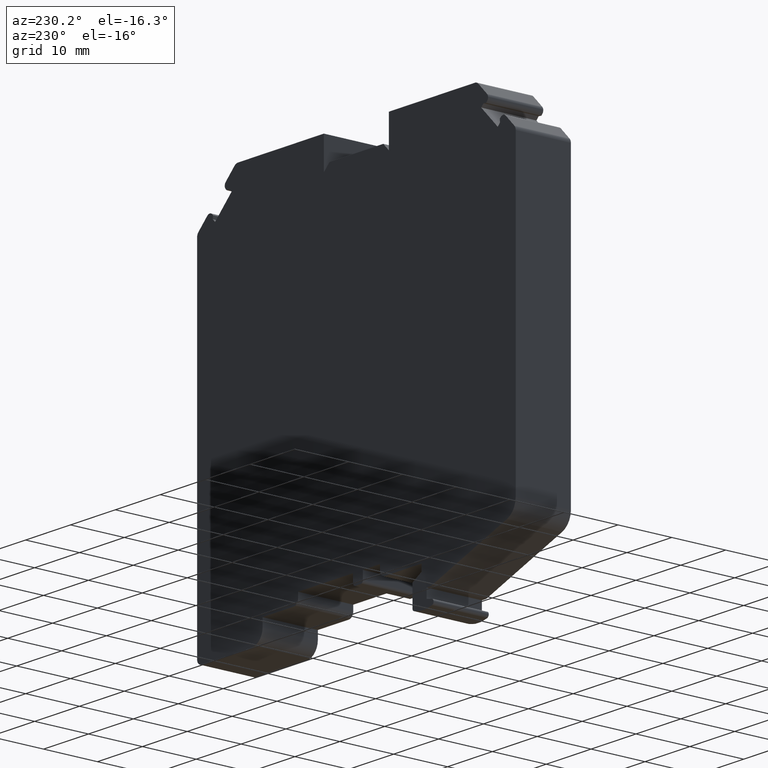
[diagram: clean part render]
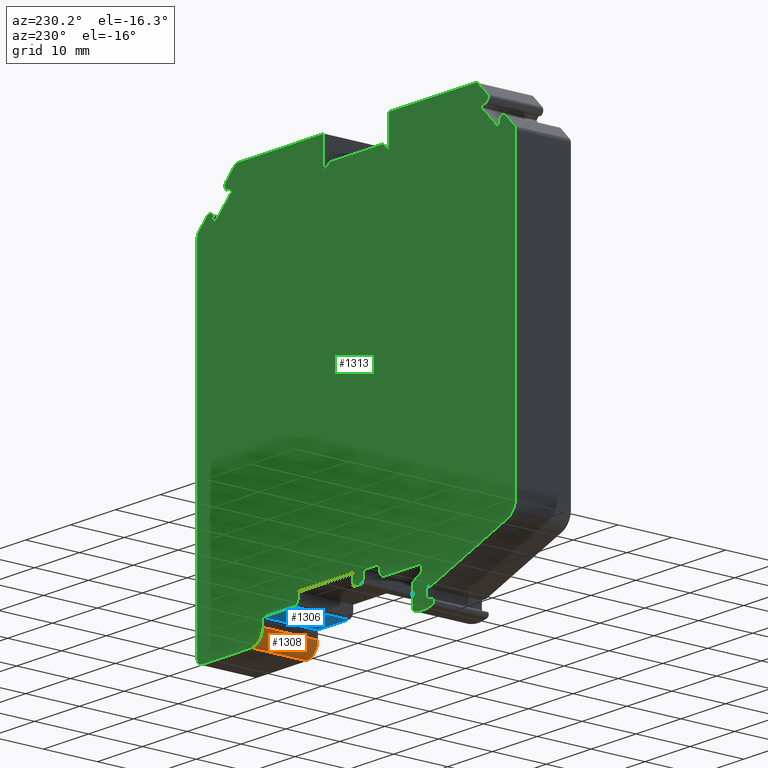
[diagram: same view with three faces highlighted in distinct colors, each labeled with its STEP entity id]
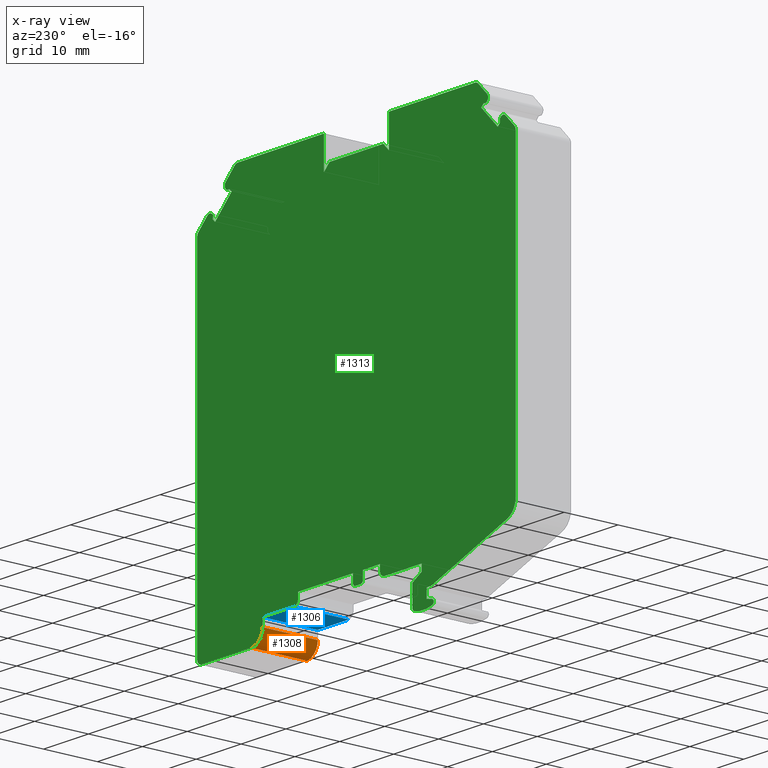
[diagram: x-ray of the same camera — body ghosted, the three highlighted faces saturated]
A machine part, auxiliary view with three faces highlighted in distinct colors.
The next image is the same camera in x-ray (body ghosted, the three faces saturated) — at least one of them is partly hidden behind the body in this view.
Their STEP definitions:

[orange] entity #1308 — the highlighted cylindrical surface (edge-blend (fillet) strip) has radius 2.4999 mm, axis along (0, -1, 0).
#50=CIRCLE('',#1417,2.499880856);
#51=CIRCLE('',#1418,2.499880856);
#71=CYLINDRICAL_SURFACE('',#1416,2.499880856);
#306=ORIENTED_EDGE('',*,*,#627,.F.);
#307=ORIENTED_EDGE('',*,*,#626,.F.);
#308=ORIENTED_EDGE('',*,*,#628,.T.);
#309=ORIENTED_EDGE('',*,*,#629,.T.);
#626=EDGE_CURVE('',#758,#757,#911,.T.);
#627=EDGE_CURVE('',#757,#759,#50,.T.);
#628=EDGE_CURVE('',#758,#760,#51,.T.);
#629=EDGE_CURVE('',#760,#759,#912,.T.);
#757=VERTEX_POINT('',#2134);
#758=VERTEX_POINT('',#2136);
#759=VERTEX_POINT('',#2140);
#760=VERTEX_POINT('',#2142);
#911=LINE('',#2137,#1064);
#912=LINE('',#2143,#1065);
#1064=VECTOR('',#1751,1000.);
#1065=VECTOR('',#1758,1000.);
#1131=EDGE_LOOP('',(#306,#307,#308,#309));
#1196=FACE_BOUND('',#1131,.T.);
#1308=ADVANCED_FACE('',(#1196),#71,.T.);
#1416=AXIS2_PLACEMENT_3D('',#2138,#1752,#1753);
#1417=AXIS2_PLACEMENT_3D('',#2139,#1754,#1755);
#1418=AXIS2_PLACEMENT_3D('',#2141,#1756,#1757);
#1751=DIRECTION('',(0.,-1.,0.));
#1752=DIRECTION('',(0.,-1.,0.));
#1753=DIRECTION('',(0.,0.,-1.));
#1754=DIRECTION('',(0.,-1.,0.));
#1755=DIRECTION('',(1.,0.,0.));
#1756=DIRECTION('',(0.,-1.,0.));
#1757=DIRECTION('',(1.,0.,0.));
#1758=DIRECTION('',(0.,-1.,0.));
#2134=CARTESIAN_POINT('',(20.8990039561598,0.,-32.3997271602398));
#2136=CARTESIAN_POINT('',(20.8990039561598,10.25,-32.3997271602398));
#2137=CARTESIAN_POINT('',(20.8990039561598,10.25,-32.3997271602398));
#2138=CARTESIAN_POINT('',(23.3988848121598,10.25,-32.3997271602398));
#2139=CARTESIAN_POINT('',(23.3988848121598,0.,-32.3997271602398));
#2140=CARTESIAN_POINT('',(23.3988848121598,0.,-34.8996080162398));
#2141=CARTESIAN_POINT('',(23.3988848121598,10.25,-32.3997271602398));
#2142=CARTESIAN_POINT('',(23.3988848121598,10.25,-34.8996080162398));
#2143=CARTESIAN_POINT('',(23.3988848121598,10.25,-34.8996080162398));

[blue] entity #1306 — the highlighted planar face has unit normal (0, 0, -1).
#298=ORIENTED_EDGE('',*,*,#621,.F.);
#299=ORIENTED_EDGE('',*,*,#620,.F.);
#300=ORIENTED_EDGE('',*,*,#622,.T.);
#301=ORIENTED_EDGE('',*,*,#623,.T.);
#620=EDGE_CURVE('',#754,#753,#905,.T.);
#621=EDGE_CURVE('',#753,#755,#906,.T.);
#622=EDGE_CURVE('',#754,#756,#907,.T.);
#623=EDGE_CURVE('',#756,#755,#908,.T.);
#753=VERTEX_POINT('',#2122);
#754=VERTEX_POINT('',#2124);
#755=VERTEX_POINT('',#2128);
#756=VERTEX_POINT('',#2130);
#905=LINE('',#2125,#1058);
#906=LINE('',#2127,#1059);
#907=LINE('',#2129,#1060);
#908=LINE('',#2131,#1061);
#1058=VECTOR('',#1741,1000.);
#1059=VECTOR('',#1744,1000.);
#1060=VECTOR('',#1745,1000.);
#1061=VECTOR('',#1746,1000.);
#1129=EDGE_LOOP('',(#298,#299,#300,#301));
#1194=FACE_BOUND('',#1129,.T.);
#1244=PLANE('',#1414);
#1306=ADVANCED_FACE('',(#1194),#1244,.T.);
#1414=AXIS2_PLACEMENT_3D('',#2126,#1742,#1743);
#1741=DIRECTION('',(0.,-1.,0.));
#1742=DIRECTION('',(0.,0.,-1.));
#1743=DIRECTION('',(-1.,0.,0.));
#1744=DIRECTION('',(1.,0.,0.));
#1745=DIRECTION('',(1.,0.,0.));
#1746=DIRECTION('',(0.,-1.,0.));
#2122=CARTESIAN_POINT('',(13.999332793599,0.,-30.8997986466398));
#2124=CARTESIAN_POINT('',(13.999332793599,10.25,-30.8997986466398));
#2125=CARTESIAN_POINT('',(13.999332793599,10.25,-30.8997986466398));
#2126=CARTESIAN_POINT('',(13.999332793599,10.25,-30.8997986466402));
#2127=CARTESIAN_POINT('',(13.999332793599,0.,-30.8997986466402));
#2128=CARTESIAN_POINT('',(20.8990039561598,0.,-30.8997986466402));
#2129=CARTESIAN_POINT('',(13.999332793599,10.25,-30.8997986466402));
#2130=CARTESIAN_POINT('',(20.8990039561598,10.25,-30.8997986466402));
#2131=CARTESIAN_POINT('',(20.8990039561598,10.25,-30.8997986466402));

[green] entity #1313 — the highlighted planar face has unit normal (0, -1, 0).
#21=CIRCLE('',#1331,0.75);
#23=CIRCLE('',#1341,0.75);
#25=CIRCLE('',#1345,1.);
#27=CIRCLE('',#1355,1.);
#29=CIRCLE('',#1359,0.75);
#31=CIRCLE('',#1369,0.75);
#33=CIRCLE('',#1373,1.);
#35=CIRCLE('',#1377,3.);
#37=CIRCLE('',#1384,0.499976171200046);
#39=CIRCLE('',#1387,6.81634180069329);
#41=CIRCLE('',#1390,0.499976171200046);
#43=CIRCLE('',#1397,0.999952342399979);
#45=CIRCLE('',#1403,0.499976171200046);
#47=CIRCLE('',#1407,0.499976171200046);
#49=CIRCLE('',#1413,0.999952342399979);
#51=CIRCLE('',#1418,2.499880856);
#53=CIRCLE('',#1422,1.);
#55=CIRCLE('',#1426,1.);
#326=ORIENTED_EDGE('',*,*,#454,.F.);
#327=ORIENTED_EDGE('',*,*,#640,.F.);
#328=ORIENTED_EDGE('',*,*,#637,.F.);
#329=ORIENTED_EDGE('',*,*,#634,.F.);
#330=ORIENTED_EDGE('',*,*,#631,.F.);
#331=ORIENTED_EDGE('',*,*,#628,.F.);
#332=ORIENTED_EDGE('',*,*,#625,.F.);
#333=ORIENTED_EDGE('',*,*,#622,.F.);
#334=ORIENTED_EDGE('',*,*,#619,.F.);
#335=ORIENTED_EDGE('',*,*,#616,.F.);
#336=ORIENTED_EDGE('',*,*,#613,.F.);
#337=ORIENTED_EDGE('',*,*,#610,.F.);
#338=ORIENTED_EDGE('',*,*,#607,.F.);
#339=ORIENTED_EDGE('',*,*,#604,.F.);
#340=ORIENTED_EDGE('',*,*,#601,.F.);
#341=ORIENTED_EDGE('',*,*,#598,.F.);
#342=ORIENTED_EDGE('',*,*,#595,.F.);
#343=ORIENTED_EDGE('',*,*,#592,.F.);
#344=ORIENTED_EDGE('',*,*,#589,.F.);
#345=ORIENTED_EDGE('',*,*,#586,.F.);
#346=ORIENTED_EDGE('',*,*,#583,.F.);
#347=ORIENTED_EDGE('',*,*,#580,.F.);
#348=ORIENTED_EDGE('',*,*,#577,.F.);
#349=ORIENTED_EDGE('',*,*,#574,.F.);
#350=ORIENTED_EDGE('',*,*,#571,.F.);
#351=ORIENTED_EDGE('',*,*,#568,.F.);
#352=ORIENTED_EDGE('',*,*,#565,.F.);
#353=ORIENTED_EDGE('',*,*,#562,.F.);
#354=ORIENTED_EDGE('',*,*,#559,.F.);
#355=ORIENTED_EDGE('',*,*,#556,.F.);
#356=ORIENTED_EDGE('',*,*,#553,.F.);
#357=ORIENTED_EDGE('',*,*,#550,.F.);
#358=ORIENTED_EDGE('',*,*,#547,.F.);
#359=ORIENTED_EDGE('',*,*,#544,.F.);
#360=ORIENTED_EDGE('',*,*,#541,.F.);
#361=ORIENTED_EDGE('',*,*,#538,.F.);
#362=ORIENTED_EDGE('',*,*,#535,.F.);
#363=ORIENTED_EDGE('',*,*,#532,.F.);
#364=ORIENTED_EDGE('',*,*,#529,.F.);
#365=ORIENTED_EDGE('',*,*,#526,.F.);
#366=ORIENTED_EDGE('',*,*,#523,.F.);
#367=ORIENTED_EDGE('',*,*,#520,.F.);
#368=ORIENTED_EDGE('',*,*,#517,.F.);
#369=ORIENTED_EDGE('',*,*,#514,.F.);
#370=ORIENTED_EDGE('',*,*,#511,.F.);
#371=ORIENTED_EDGE('',*,*,#508,.F.);
#372=ORIENTED_EDGE('',*,*,#505,.F.);
#373=ORIENTED_EDGE('',*,*,#502,.F.);
#374=ORIENTED_EDGE('',*,*,#499,.F.);
#375=ORIENTED_EDGE('',*,*,#496,.F.);
#376=ORIENTED_EDGE('',*,*,#493,.F.);
#377=ORIENTED_EDGE('',*,*,#490,.F.);
#378=ORIENTED_EDGE('',*,*,#487,.F.);
#379=ORIENTED_EDGE('',*,*,#484,.F.);
#380=ORIENTED_EDGE('',*,*,#481,.F.);
#381=ORIENTED_EDGE('',*,*,#478,.F.);
#382=ORIENTED_EDGE('',*,*,#475,.F.);
#383=ORIENTED_EDGE('',*,*,#472,.F.);
#384=ORIENTED_EDGE('',*,*,#469,.F.);
#385=ORIENTED_EDGE('',*,*,#466,.F.);
#386=ORIENTED_EDGE('',*,*,#463,.F.);
#387=ORIENTED_EDGE('',*,*,#460,.F.);
#388=ORIENTED_EDGE('',*,*,#457,.F.);
#454=EDGE_CURVE('',#643,#644,#769,.T.);
#457=EDGE_CURVE('',#644,#646,#21,.T.);
#460=EDGE_CURVE('',#646,#648,#773,.T.);
#463=EDGE_CURVE('',#648,#650,#776,.T.);
#466=EDGE_CURVE('',#650,#652,#779,.T.);
#469=EDGE_CURVE('',#652,#654,#782,.T.);
#472=EDGE_CURVE('',#654,#656,#785,.T.);
#475=EDGE_CURVE('',#656,#658,#788,.T.);
#478=EDGE_CURVE('',#658,#660,#791,.T.);
#481=EDGE_CURVE('',#660,#662,#23,.T.);
#484=EDGE_CURVE('',#662,#664,#795,.T.);
#487=EDGE_CURVE('',#664,#666,#25,.T.);
#490=EDGE_CURVE('',#666,#668,#799,.T.);
#493=EDGE_CURVE('',#668,#670,#802,.T.);
#496=EDGE_CURVE('',#670,#672,#805,.T.);
#499=EDGE_CURVE('',#672,#674,#808,.T.);
#502=EDGE_CURVE('',#674,#676,#811,.T.);
#505=EDGE_CURVE('',#676,#678,#814,.T.);
#508=EDGE_CURVE('',#678,#680,#817,.T.);
#511=EDGE_CURVE('',#680,#682,#27,.T.);
#514=EDGE_CURVE('',#682,#684,#821,.T.);
#517=EDGE_CURVE('',#684,#686,#29,.T.);
#520=EDGE_CURVE('',#686,#688,#825,.T.);
#523=EDGE_CURVE('',#688,#690,#828,.T.);
#526=EDGE_CURVE('',#690,#692,#831,.T.);
#529=EDGE_CURVE('',#692,#694,#834,.T.);
#532=EDGE_CURVE('',#694,#696,#837,.T.);
#535=EDGE_CURVE('',#696,#698,#840,.T.);
#538=EDGE_CURVE('',#698,#700,#843,.T.);
#541=EDGE_CURVE('',#700,#702,#31,.T.);
#544=EDGE_CURVE('',#702,#704,#847,.T.);
#547=EDGE_CURVE('',#704,#706,#33,.T.);
#550=EDGE_CURVE('',#706,#708,#851,.T.);
#553=EDGE_CURVE('',#708,#710,#35,.T.);
#556=EDGE_CURVE('',#710,#712,#855,.T.);
#559=EDGE_CURVE('',#712,#714,#858,.T.);
#562=EDGE_CURVE('',#714,#716,#861,.T.);
#565=EDGE_CURVE('',#716,#718,#864,.T.);
#568=EDGE_CURVE('',#718,#720,#37,.T.);
#571=EDGE_CURVE('',#720,#722,#39,.T.);
#574=EDGE_CURVE('',#722,#724,#41,.T.);
#577=EDGE_CURVE('',#724,#726,#870,.T.);
#580=EDGE_CURVE('',#726,#728,#873,.T.);
#583=EDGE_CURVE('',#728,#730,#876,.T.);
#586=EDGE_CURVE('',#730,#732,#879,.T.);
#589=EDGE_CURVE('',#732,#734,#43,.T.);
#592=EDGE_CURVE('',#734,#736,#883,.T.);
#595=EDGE_CURVE('',#736,#738,#886,.T.);
#598=EDGE_CURVE('',#738,#740,#889,.T.);
#601=EDGE_CURVE('',#740,#742,#45,.T.);
#604=EDGE_CURVE('',#742,#744,#893,.T.);
#607=EDGE_CURVE('',#744,#746,#47,.T.);
#610=EDGE_CURVE('',#746,#748,#897,.T.);
#613=EDGE_CURVE('',#748,#750,#900,.T.);
#616=EDGE_CURVE('',#750,#752,#903,.T.);
#619=EDGE_CURVE('',#752,#754,#49,.T.);
#622=EDGE_CURVE('',#754,#756,#907,.T.);
#625=EDGE_CURVE('',#756,#758,#910,.T.);
#628=EDGE_CURVE('',#758,#760,#51,.T.);
#631=EDGE_CURVE('',#760,#762,#914,.T.);
#634=EDGE_CURVE('',#762,#764,#53,.T.);
#637=EDGE_CURVE('',#764,#766,#918,.T.);
#640=EDGE_CURVE('',#766,#643,#55,.T.);
#643=VERTEX_POINT('',#1792);
#644=VERTEX_POINT('',#1794);
#646=VERTEX_POINT('',#1800);
#648=VERTEX_POINT('',#1806);
#650=VERTEX_POINT('',#1812);
#652=VERTEX_POINT('',#1818);
#654=VERTEX_POINT('',#1824);
#656=VERTEX_POINT('',#1830);
#658=VERTEX_POINT('',#1836);
#660=VERTEX_POINT('',#1842);
#662=VERTEX_POINT('',#1848);
#664=VERTEX_POINT('',#1854);
#666=VERTEX_POINT('',#1860);
#668=VERTEX_POINT('',#1866);
#670=VERTEX_POINT('',#1872);
#672=VERTEX_POINT('',#1878);
#674=VERTEX_POINT('',#1884);
#676=VERTEX_POINT('',#1890);
#678=VERTEX_POINT('',#1896);
#680=VERTEX_POINT('',#1902);
#682=VERTEX_POINT('',#1908);
#684=VERTEX_POINT('',#1914);
#686=VERTEX_POINT('',#1920);
#688=VERTEX_POINT('',#1926);
#690=VERTEX_POINT('',#1932);
#692=VERTEX_POINT('',#1938);
#694=VERTEX_POINT('',#1944);
#696=VERTEX_POINT('',#1950);
#698=VERTEX_POINT('',#1956);
#700=VERTEX_POINT('',#1962);
#702=VERTEX_POINT('',#1968);
#704=VERTEX_POINT('',#1974);
#706=VERTEX_POINT('',#1980);
#708=VERTEX_POINT('',#1986);
#710=VERTEX_POINT('',#1992);
#712=VERTEX_POINT('',#1998);
#714=VERTEX_POINT('',#2004);
#716=VERTEX_POINT('',#2010);
#718=VERTEX_POINT('',#2016);
#720=VERTEX_POINT('',#2022);
#722=VERTEX_POINT('',#2028);
#724=VERTEX_POINT('',#2034);
#726=VERTEX_POINT('',#2040);
#728=VERTEX_POINT('',#2046);
#730=VERTEX_POINT('',#2052);
#732=VERTEX_POINT('',#2058);
#734=VERTEX_POINT('',#2064);
#736=VERTEX_POINT('',#2070);
#738=VERTEX_POINT('',#2076);
#740=VERTEX_POINT('',#2082);
#742=VERTEX_POINT('',#2088);
#744=VERTEX_POINT('',#2094);
#746=VERTEX_POINT('',#2100);
#748=VERTEX_POINT('',#2106);
#750=VERTEX_POINT('',#2112);
#752=VERTEX_POINT('',#2118);
#754=VERTEX_POINT('',#2124);
#756=VERTEX_POINT('',#2130);
#758=VERTEX_POINT('',#2136);
#760=VERTEX_POINT('',#2142);
#762=VERTEX_POINT('',#2148);
#764=VERTEX_POINT('',#2154);
#766=VERTEX_POINT('',#2160);
#769=LINE('',#1793,#922);
#773=LINE('',#1805,#926);
#776=LINE('',#1811,#929);
#779=LINE('',#1817,#932);
#782=LINE('',#1823,#935);
#785=LINE('',#1829,#938);
#788=LINE('',#1835,#941);
#791=LINE('',#1841,#944);
#795=LINE('',#1853,#948);
#799=LINE('',#1865,#952);
#802=LINE('',#1871,#955);
#805=LINE('',#1877,#958);
#808=LINE('',#1883,#961);
#811=LINE('',#1889,#964);
#814=LINE('',#1895,#967);
#817=LINE('',#1901,#970);
#821=LINE('',#1913,#974);
#825=LINE('',#1925,#978);
#828=LINE('',#1931,#981);
#831=LINE('',#1937,#984);
#834=LINE('',#1943,#987);
#837=LINE('',#1949,#990);
#840=LINE('',#1955,#993);
#843=LINE('',#1961,#996);
#847=LINE('',#1973,#1000);
#851=LINE('',#1985,#1004);
#855=LINE('',#1997,#1008);
#858=LINE('',#2003,#1011);
#861=LINE('',#2009,#1014);
#864=LINE('',#2015,#1017);
#870=LINE('',#2039,#1023);
#873=LINE('',#2045,#1026);
#876=LINE('',#2051,#1029);
#879=LINE('',#2057,#1032);
#883=LINE('',#2069,#1036);
#886=LINE('',#2075,#1039);
#889=LINE('',#2081,#1042);
#893=LINE('',#2093,#1046);
#897=LINE('',#2105,#1050);
#900=LINE('',#2111,#1053);
#903=LINE('',#2117,#1056);
#907=LINE('',#2129,#1060);
#910=LINE('',#2135,#1063);
#914=LINE('',#2147,#1067);
#918=LINE('',#2159,#1071);
#922=VECTOR('',#1435,1000.);
#926=VECTOR('',#1447,1000.);
#929=VECTOR('',#1452,1000.);
#932=VECTOR('',#1457,1000.);
#935=VECTOR('',#1462,1000.);
#938=VECTOR('',#1467,1000.);
#941=VECTOR('',#1472,1000.);
#944=VECTOR('',#1477,1000.);
#948=VECTOR('',#1489,1000.);
#952=VECTOR('',#1501,1000.);
#955=VECTOR('',#1506,1000.);
#958=VECTOR('',#1511,1000.);
#961=VECTOR('',#1516,1000.);
#964=VECTOR('',#1521,1000.);
#967=VECTOR('',#1526,1000.);
#970=VECTOR('',#1531,1000.);
#974=VECTOR('',#1543,1000.);
#978=VECTOR('',#1555,1000.);
#981=VECTOR('',#1560,1000.);
#984=VECTOR('',#1565,1000.);
#987=VECTOR('',#1570,1000.);
#990=VECTOR('',#1575,1000.);
#993=VECTOR('',#1580,1000.);
#996=VECTOR('',#1585,1000.);
#1000=VECTOR('',#1597,1000.);
#1004=VECTOR('',#1609,1000.);
#1008=VECTOR('',#1621,1000.);
#1011=VECTOR('',#1626,1000.);
#1014=VECTOR('',#1631,1000.);
#1017=VECTOR('',#1636,1000.);
#1023=VECTOR('',#1662,1000.);
#1026=VECTOR('',#1667,1000.);
#1029=VECTOR('',#1672,1000.);
#1032=VECTOR('',#1677,1000.);
#1036=VECTOR('',#1689,1000.);
#1039=VECTOR('',#1694,1000.);
#1042=VECTOR('',#1699,1000.);
#1046=VECTOR('',#1711,1000.);
#1050=VECTOR('',#1723,1000.);
#1053=VECTOR('',#1728,1000.);
#1056=VECTOR('',#1733,1000.);
#1060=VECTOR('',#1745,1000.);
#1063=VECTOR('',#1750,1000.);
#1067=VECTOR('',#1762,1000.);
#1071=VECTOR('',#1774,1000.);
#1136=EDGE_LOOP('',(#326,#327,#328,#329,#330,#331,#332,#333,#334,#335,#336,
#337,#338,#339,#340,#341,#342,#343,#344,#345,#346,#347,#348,#349,#350,#351,
#352,#353,#354,#355,#356,#357,#358,#359,#360,#361,#362,#363,#364,#365,#366,
#367,#368,#369,#370,#371,#372,#373,#374,#375,#376,#377,#378,#379,#380,#381,
#382,#383,#384,#385,#386,#387,#388));
#1201=FACE_BOUND('',#1136,.T.);
#1248=PLANE('',#1427);
#1313=ADVANCED_FACE('',(#1201),#1248,.F.);
#1331=AXIS2_PLACEMENT_3D('',#1799,#1441,#1442);
#1341=AXIS2_PLACEMENT_3D('',#1847,#1483,#1484);
#1345=AXIS2_PLACEMENT_3D('',#1859,#1495,#1496);
#1355=AXIS2_PLACEMENT_3D('',#1907,#1537,#1538);
#1359=AXIS2_PLACEMENT_3D('',#1919,#1549,#1550);
#1369=AXIS2_PLACEMENT_3D('',#1967,#1591,#1592);
#1373=AXIS2_PLACEMENT_3D('',#1979,#1603,#1604);
#1377=AXIS2_PLACEMENT_3D('',#1991,#1615,#1616);
#1384=AXIS2_PLACEMENT_3D('',#2021,#1642,#1643);
#1387=AXIS2_PLACEMENT_3D('',#2027,#1649,#1650);
#1390=AXIS2_PLACEMENT_3D('',#2033,#1656,#1657);
#1397=AXIS2_PLACEMENT_3D('',#2063,#1683,#1684);
#1403=AXIS2_PLACEMENT_3D('',#2087,#1705,#1706);
#1407=AXIS2_PLACEMENT_3D('',#2099,#1717,#1718);
#1413=AXIS2_PLACEMENT_3D('',#2123,#1739,#1740);
#1418=AXIS2_PLACEMENT_3D('',#2141,#1756,#1757);
#1422=AXIS2_PLACEMENT_3D('',#2153,#1768,#1769);
#1426=AXIS2_PLACEMENT_3D('',#2164,#1780,#1781);
#1427=AXIS2_PLACEMENT_3D('',#2165,#1782,#1783);
#1435=DIRECTION('',(-0.707106781186654,0.,0.707106781186441));
#1441=DIRECTION('',(0.,-1.,0.));
#1442=DIRECTION('',(1.,0.,0.));
#1447=DIRECTION('',(-0.707106781185423,0.,-0.707106781187672));
#1452=DIRECTION('',(0.0840390031473985,0.,-0.996462465901246));
#1457=DIRECTION('',(-0.707106781186548,0.,-0.707106781186548));
#1462=DIRECTION('',(-0.707106781186585,0.,0.70710678118651));
#1467=DIRECTION('',(0.707106781186586,0.,0.707106781186509));
#1472=DIRECTION('',(0.996462465901167,0.,-0.0840390031483343));
#1477=DIRECTION('',(0.707106781187732,0.,0.707106781185363));
#1483=DIRECTION('',(0.,-1.,0.));
#1484=DIRECTION('',(-1.,0.,0.));
#1489=DIRECTION('',(-0.707106781186676,0.,0.707106781186419));
#1495=DIRECTION('',(0.,-1.,0.));
#1496=DIRECTION('',(1.,0.,0.));
#1501=DIRECTION('',(-1.,0.,-2.89334770882211E-15));
#1506=DIRECTION('',(0.,0.,-1.));
#1511=DIRECTION('',(-0.707106781186516,0.,0.707106781186579));
#1516=DIRECTION('',(-1.,0.,-9.25185853854296E-15));
#1521=DIRECTION('',(-0.707106781186422,0.,-0.707106781186673));
#1526=DIRECTION('',(0.,0.,1.));
#1531=DIRECTION('',(-1.,0.,0.));
#1537=DIRECTION('',(0.,-1.,0.));
#1538=DIRECTION('',(1.,0.,0.));
#1543=DIRECTION('',(-0.707106781186541,0.,-0.707106781186554));
#1549=DIRECTION('',(0.,-1.,0.));
#1550=DIRECTION('',(1.,0.,0.));
#1555=DIRECTION('',(0.707106781186356,0.,-0.707106781186739));
#1560=DIRECTION('',(0.996462465901177,0.,0.0840390031482103));
#1565=DIRECTION('',(0.7071067811867,0.,-0.707106781186395));
#1570=DIRECTION('',(-0.707106781186521,0.,-0.707106781186574));
#1575=DIRECTION('',(-0.707106781186205,0.,0.70710678118689));
#1580=DIRECTION('',(0.0840390031488959,0.,0.99646246590112));
#1585=DIRECTION('',(-0.707106781187385,0.,0.70710678118571));
#1591=DIRECTION('',(0.,-1.,0.));
#1592=DIRECTION('',(1.,0.,0.));
#1597=DIRECTION('',(-0.707106781186637,0.,-0.707106781186458));
#1603=DIRECTION('',(0.,-1.,0.));
#1604=DIRECTION('',(1.,0.,0.));
#1609=DIRECTION('',(4.08524090229804E-14,0.,-1.));
#1615=DIRECTION('',(0.,-1.,0.));
#1616=DIRECTION('',(1.,0.,0.));
#1621=DIRECTION('',(0.939692620785912,0.,-0.342020143325659));
#1626=DIRECTION('',(1.,0.,-4.44110375084762E-13));
#1631=DIRECTION('',(2.61241397108684E-13,0.,-1.));
#1636=DIRECTION('',(-0.978787873763801,0.,-0.204876299685779));
#1642=DIRECTION('',(0.,-1.,0.));
#1643=DIRECTION('',(1.,0.,0.));
#1649=DIRECTION('',(0.,-1.,0.));
#1650=DIRECTION('',(1.,0.,0.));
#1656=DIRECTION('',(0.,-1.,0.));
#1657=DIRECTION('',(-1.,0.,0.));
#1662=DIRECTION('',(-1.15903221866185E-13,0.,1.));
#1667=DIRECTION('',(-0.866025403784367,0.,0.500000000000124));
#1672=DIRECTION('',(3.70091979237302E-13,0.,1.));
#1677=DIRECTION('',(1.,0.,4.556478810639E-14));
#1683=DIRECTION('',(0.,-1.,0.));
#1684=DIRECTION('',(-1.,0.,0.));
#1689=DIRECTION('',(0.,0.,1.));
#1694=DIRECTION('',(1.,0.,0.));
#1699=DIRECTION('',(1.98924438840006E-13,0.,-1.));
#1705=DIRECTION('',(0.,-1.,0.));
#1706=DIRECTION('',(1.,0.,0.));
#1711=DIRECTION('',(1.,0.,2.94917045954725E-13));
#1717=DIRECTION('',(0.,-1.,0.));
#1718=DIRECTION('',(-1.,0.,0.));
#1723=DIRECTION('',(0.,0.,1.));
#1728=DIRECTION('',(1.,0.,0.));
#1733=DIRECTION('',(-1.76950227572874E-13,0.,-1.));
#1739=DIRECTION('',(0.,-1.,0.));
#1740=DIRECTION('',(1.,0.,0.));
#1745=DIRECTION('',(1.,0.,0.));
#1750=DIRECTION('',(-3.70091979237329E-14,0.,-1.));
#1756=DIRECTION('',(0.,-1.,0.));
#1757=DIRECTION('',(1.,0.,0.));
#1762=DIRECTION('',(1.,0.,-5.00017847146539E-15));
#1768=DIRECTION('',(0.,-1.,0.));
#1769=DIRECTION('',(-1.,0.,0.));
#1774=DIRECTION('',(0.,0.,1.));
#1780=DIRECTION('',(0.,-1.,0.));
#1781=DIRECTION('',(1.,0.,0.));
#1782=DIRECTION('',(0.,-1.,0.));
#1783=DIRECTION('',(0.,0.,-1.));
#1792=CARTESIAN_POINT('',(35.2078255674833,10.25,29.5416394759568));
#1793=CARTESIAN_POINT('',(33.2259690585891,10.25,31.5234959848507));
#1794=CARTESIAN_POINT('',(33.2259690585891,10.25,31.5234959848507));
#1799=CARTESIAN_POINT('',(32.6956389726991,10.25,30.9931658989609));
#1800=CARTESIAN_POINT('',(32.1653088868083,10.25,31.5234959848499));
#1805=CARTESIAN_POINT('',(32.1653088868082,10.25,31.5234959848501));
#1806=CARTESIAN_POINT('',(31.9602479202654,10.25,31.3184350183066));
#1811=CARTESIAN_POINT('',(31.9602479202654,10.25,31.3184350183066));
#1812=CARTESIAN_POINT('',(32.0097453949479,10.25,30.7315363899218));
#1817=CARTESIAN_POINT('',(32.0097453949479,10.25,30.7315363899218));
#1818=CARTESIAN_POINT('',(31.4935574446817,10.25,30.2153484396556));
#1823=CARTESIAN_POINT('',(27.8166021825115,10.25,33.8923037018255));
#1824=CARTESIAN_POINT('',(27.8166021825115,10.25,33.8923037018255));
#1829=CARTESIAN_POINT('',(28.3327901327777,10.25,34.4084916520916));
#1830=CARTESIAN_POINT('',(28.3327901327777,10.25,34.4084916520916));
#1835=CARTESIAN_POINT('',(28.9196887611625,10.25,34.3589941774086));
#1836=CARTESIAN_POINT('',(28.9196887611625,10.25,34.3589941774086));
#1841=CARTESIAN_POINT('',(29.1247497277063,10.25,34.5640551439517));
#1842=CARTESIAN_POINT('',(29.1247497277063,10.25,34.5640551439517));
#1847=CARTESIAN_POINT('',(28.5944196418173,10.25,35.0943852298425));
#1848=CARTESIAN_POINT('',(29.1247497277071,10.25,35.6247153157325));
#1853=CARTESIAN_POINT('',(27.1428932188131,10.25,37.6065718246264));
#1854=CARTESIAN_POINT('',(27.1428932188131,10.25,37.6065718246264));
#1859=CARTESIAN_POINT('',(26.4357864376263,10.25,36.8994650434401));
#1860=CARTESIAN_POINT('',(26.4357864376268,10.25,37.8994650434401));
#1865=CARTESIAN_POINT('',(7.24999999999998,10.25,37.8994650434401));
#1866=CARTESIAN_POINT('',(7.24999999999998,10.25,37.8994650434401));
#1871=CARTESIAN_POINT('',(7.24999999999998,10.25,37.8994650434401));
#1872=CARTESIAN_POINT('',(7.24999999999998,10.25,32.1494650434398));
#1877=CARTESIAN_POINT('',(5.99999999999978,10.25,33.3994650434401));
#1878=CARTESIAN_POINT('',(5.99999999999978,10.25,33.3994650434401));
#1883=CARTESIAN_POINT('',(5.99999999999978,10.25,33.3994650434401));
#1884=CARTESIAN_POINT('',(-6.00000000000023,10.25,33.39946504344));
#1889=CARTESIAN_POINT('',(-6.00000000000023,10.25,33.39946504344));
#1890=CARTESIAN_POINT('',(-7.24999999999998,10.25,32.1494650434398));
#1895=CARTESIAN_POINT('',(-7.24999999999998,10.25,37.8994650434401));
#1896=CARTESIAN_POINT('',(-7.24999999999998,10.25,37.8994650434401));
#1901=CARTESIAN_POINT('',(-7.24999999999998,10.25,37.8994650434401));
#1902=CARTESIAN_POINT('',(-26.4357864376268,10.25,37.8994650434401));
#1907=CARTESIAN_POINT('',(-26.4357864376268,10.25,36.8994650434401));
#1908=CARTESIAN_POINT('',(-27.1428932188133,10.25,37.6065718246266));
#1913=CARTESIAN_POINT('',(-27.1428932188131,10.25,37.6065718246265));
#1914=CARTESIAN_POINT('',(-29.1247497277069,10.25,35.6247153157327));
#1919=CARTESIAN_POINT('',(-28.5944196418173,10.25,35.0943852298425));
#1920=CARTESIAN_POINT('',(-29.1247497277072,10.25,34.5640551439526));
#1925=CARTESIAN_POINT('',(-29.124749727707,10.25,34.5640551439528));
#1926=CARTESIAN_POINT('',(-28.9196887611629,10.25,34.3589941774087));
#1931=CARTESIAN_POINT('',(-28.9196887611629,10.25,34.3589941774087));
#1932=CARTESIAN_POINT('',(-28.3327901327786,10.25,34.4084916520916));
#1937=CARTESIAN_POINT('',(-28.3327901327786,10.25,34.4084916520916));
#1938=CARTESIAN_POINT('',(-27.8166021825124,10.25,33.8923037018257));
#1943=CARTESIAN_POINT('',(-27.8166021825124,10.25,33.8923037018257));
#1944=CARTESIAN_POINT('',(-31.4935574446822,10.25,30.2153484396556));
#1949=CARTESIAN_POINT('',(-32.0097453949479,10.25,30.7315363899218));
#1950=CARTESIAN_POINT('',(-32.0097453949479,10.25,30.7315363899218));
#1955=CARTESIAN_POINT('',(-31.9602479202645,10.25,31.3184350183066));
#1956=CARTESIAN_POINT('',(-31.9602479202645,10.25,31.3184350183066));
#1961=CARTESIAN_POINT('',(-32.1653088868094,10.25,31.523495984851));
#1962=CARTESIAN_POINT('',(-32.1653088868094,10.25,31.523495984851));
#1967=CARTESIAN_POINT('',(-32.6956389726991,10.25,30.9931658989609));
#1968=CARTESIAN_POINT('',(-33.2259690585889,10.25,31.523495984851));
#1973=CARTESIAN_POINT('',(-33.2259690585888,10.25,31.5234959848509));
#1974=CARTESIAN_POINT('',(-35.2078255674834,10.25,29.5416394759568));
#1979=CARTESIAN_POINT('',(-34.5007187862967,10.25,28.8345326947704));
#1980=CARTESIAN_POINT('',(-35.5007187862967,10.25,28.8345326947704));
#1985=CARTESIAN_POINT('',(-35.500718786297,10.25,28.8345326947704));
#1986=CARTESIAN_POINT('',(-35.500718786296,10.25,-25.7376055903648));
#1991=CARTESIAN_POINT('',(-32.500718786296,10.25,-25.7376055903648));
#1992=CARTESIAN_POINT('',(-33.526779216273,10.25,-28.5566834527225));
#1997=CARTESIAN_POINT('',(-16.6492065009605,10.25,-34.6996175477598));
#1998=CARTESIAN_POINT('',(-16.6492065009605,10.25,-34.6996175477598));
#2003=CARTESIAN_POINT('',(-15.6492541585607,10.25,-34.6996175477602));
#2004=CARTESIAN_POINT('',(-15.6492541585607,10.25,-34.6996175477602));
#2009=CARTESIAN_POINT('',(-15.6492541585607,10.25,-34.6996175477602));
#2010=CARTESIAN_POINT('',(-15.6492541585602,10.25,-36.3995365298399));
#2015=CARTESIAN_POINT('',(-16.8016373859672,10.25,-36.6407491743562));
#2016=CARTESIAN_POINT('',(-16.8016373859672,10.25,-36.6407491743562));
#2021=CARTESIAN_POINT('',(-16.6992041180807,10.25,-37.1301197878977));
#2022=CARTESIAN_POINT('',(-16.843656336409,10.25,-37.6087738679888));
#2027=CARTESIAN_POINT('',(-14.8742910931996,10.25,-31.0831232427468));
#2028=CARTESIAN_POINT('',(-12.8509706378495,10.25,-37.5922468303614));
#2033=CARTESIAN_POINT('',(-12.9993804512001,10.25,-37.114805002419));
#2034=CARTESIAN_POINT('',(-12.49940428,10.25,-37.114805002419));
#2039=CARTESIAN_POINT('',(-12.4994042800011,10.25,-33.283253103346));
#2040=CARTESIAN_POINT('',(-12.4994042800011,10.25,-33.283253103346));
#2045=CARTESIAN_POINT('',(-14.5493065819204,10.25,-32.09974145752));
#2046=CARTESIAN_POINT('',(-14.5493065819204,10.25,-32.09974145752));
#2051=CARTESIAN_POINT('',(-14.54930658192,10.25,-30.8997986466402));
#2052=CARTESIAN_POINT('',(-14.54930658192,10.25,-30.8997986466402));
#2057=CARTESIAN_POINT('',(-6.24970213999987,10.25,-30.8997986466398));
#2058=CARTESIAN_POINT('',(-6.24970213999987,10.25,-30.8997986466398));
#2063=CARTESIAN_POINT('',(-6.24970214000031,10.25,-29.8998463042399));
#2064=CARTESIAN_POINT('',(-5.24974979760033,10.25,-29.8998463042399));
#2069=CARTESIAN_POINT('',(-5.24974979760007,10.25,-29.8998463042399));
#2070=CARTESIAN_POINT('',(-5.24974979760007,10.25,-28.8998939618403));
#2075=CARTESIAN_POINT('',(-5.24974979760007,10.25,-28.8998939618403));
#2076=CARTESIAN_POINT('',(-1.44993089648082,10.25,-28.8998939618403));
#2081=CARTESIAN_POINT('',(-1.44993089648052,10.25,-30.3998224754403));
#2082=CARTESIAN_POINT('',(-1.44993089648052,10.25,-30.3998224754403));
#2087=CARTESIAN_POINT('',(-0.949954725280477,10.25,-30.3998224754403));
#2088=CARTESIAN_POINT('',(-0.949954725280478,10.25,-30.8997986466404));
#2093=CARTESIAN_POINT('',(0.249988085599284,10.25,-30.8997986466399));
#2094=CARTESIAN_POINT('',(0.249988085599284,10.25,-30.8997986466399));
#2099=CARTESIAN_POINT('',(0.249988085599284,10.25,-30.3998224754398));
#2100=CARTESIAN_POINT('',(0.749964256799331,10.25,-30.3998224754398));
#2105=CARTESIAN_POINT('',(0.749964256799629,10.25,-30.3998224754398));
#2106=CARTESIAN_POINT('',(0.749964256799629,10.25,-28.8998939618403));
#2111=CARTESIAN_POINT('',(0.749964256799629,10.25,-28.8998939618403));
#2112=CARTESIAN_POINT('',(12.9993804511992,10.25,-28.8998939618403));
#2117=CARTESIAN_POINT('',(12.9993804511992,10.25,-28.8998939618403));
#2118=CARTESIAN_POINT('',(12.999380451199,10.25,-29.8998463042399));
#2123=CARTESIAN_POINT('',(13.999332793599,10.25,-29.8998463042399));
#2124=CARTESIAN_POINT('',(13.999332793599,10.25,-30.8997986466398));
#2129=CARTESIAN_POINT('',(13.999332793599,10.25,-30.8997986466402));
#2130=CARTESIAN_POINT('',(20.8990039561598,10.25,-30.8997986466402));
#2135=CARTESIAN_POINT('',(20.8990039561598,10.25,-30.8997986466402));
#2136=CARTESIAN_POINT('',(20.8990039561598,10.25,-32.3997271602398));
#2141=CARTESIAN_POINT('',(23.3988848121598,10.25,-32.3997271602398));
#2142=CARTESIAN_POINT('',(23.3988848121598,10.25,-34.8996080162398));
#2147=CARTESIAN_POINT('',(23.3988848121598,10.25,-34.8996080162399));
#2148=CARTESIAN_POINT('',(34.5007187862958,10.25,-34.89960801624));
#2153=CARTESIAN_POINT('',(34.5007187862958,10.25,-33.89960801624));
#2154=CARTESIAN_POINT('',(35.5007187862958,10.25,-33.89960801624));
#2159=CARTESIAN_POINT('',(35.5007187862961,10.25,3.59338104810719));
#2160=CARTESIAN_POINT('',(35.5007187862967,10.25,28.8345326947704));
#2164=CARTESIAN_POINT('',(34.5007187862967,10.25,28.8345326947704));
#2165=CARTESIAN_POINT('',(32.6956389726991,10.25,30.9931658989609));